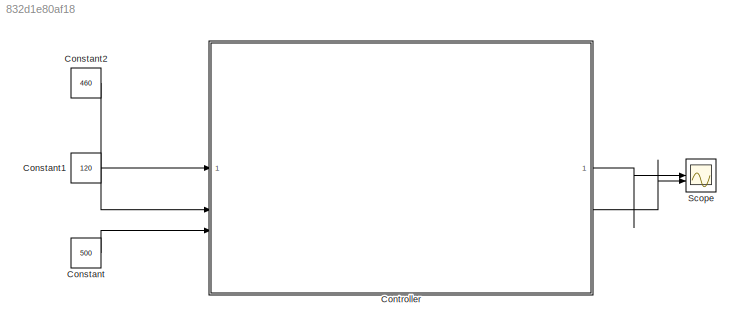
MODEL slx_832d1e80af18
KIND model
CONFIG AbsTol = auto
CONFIG EnableMultiTasking = on
CONFIG FixedStep = 0.1
CONFIG MaxStep = auto
CONFIG MinStep = auto
CONFIG RelTol = 1e-3
CONFIG SampleTimeConstraint = Unconstrained
CONFIG SolverName = FixedStepDiscrete
CONFIG StartTime = 0.0
CONFIG StopTime = 10.0
BLOCK [Constant] Constant
  Value = 500
BLOCK [Constant] Constant1
  Value = 120
BLOCK [Constant] Constant2
  Value = 460
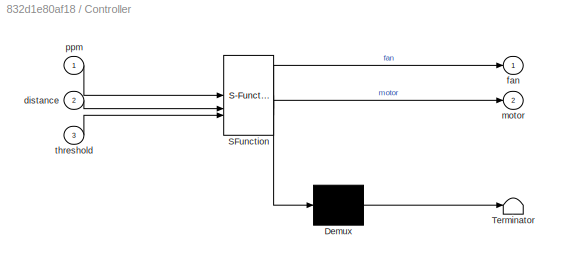
BLOCK [SubSystem] Controller
  ErrorFcn = Stateflow.Translate.translate
  PermitHierarchicalResolution = ExplicitOnly
  SFBlockType = Chart
  TreatAsAtomicUnit = on
BLOCK [Demux] Controller/ Demux 
  Outputs = 1
BLOCK [S-Function] Controller/ SFunction 
  EnableBusSupport = on
  FunctionName = sf_sfun
  PortCounts = [3 3]
  SFcnIsStateOwnerBlock = off
  SFunctionDeploymentMode = off
  Tag = Stateflow S-Function 3
BLOCK [Terminator] Controller/ Terminator 
BLOCK [Inport] Controller/distance
  Port = 2
BLOCK [Outport] Controller/fan
BLOCK [Outport] Controller/motor
  Port = 2
BLOCK [Inport] Controller/ppm
BLOCK [Inport] Controller/threshold
  Port = 3
BLOCK [Scope] Scope
  Floating = off
  NumInputPorts = 2
  ScopeSpecificationString = Simulink.scopes.TimeScopeBlockCfg('CurrentConfiguration', extmgr.ConfigurationSet(extmgr.Configuration('Core','General UI',true),extmgr.Configuration('Core','Source UI',true),extmgr.Configuration('Sources','WiredSimulink',true),extmgr.Configuration('Visuals','Time Domain',true),extmgr.Configuration('Tools','Plot Navigation',true),extmgr.Configuration('Tools','Measurements',true)),'Version','2024a'...<+1ch>
LINE Constant1:1 -> Controller:2
LINE Constant2:1 -> Controller:1
LINE Constant:1 -> Controller:3
LINE Controller:1 -> Scope:1
LINE Controller:2 -> Scope:2
CHART Controller states=4 transitions=9
  STATE_LABEL 'approach'
  STATE_LABEL 'idle'
  STATE_LABEL 'stay'
  STATE_LABEL 'retreat'
CHART  states=0 transitions=0
